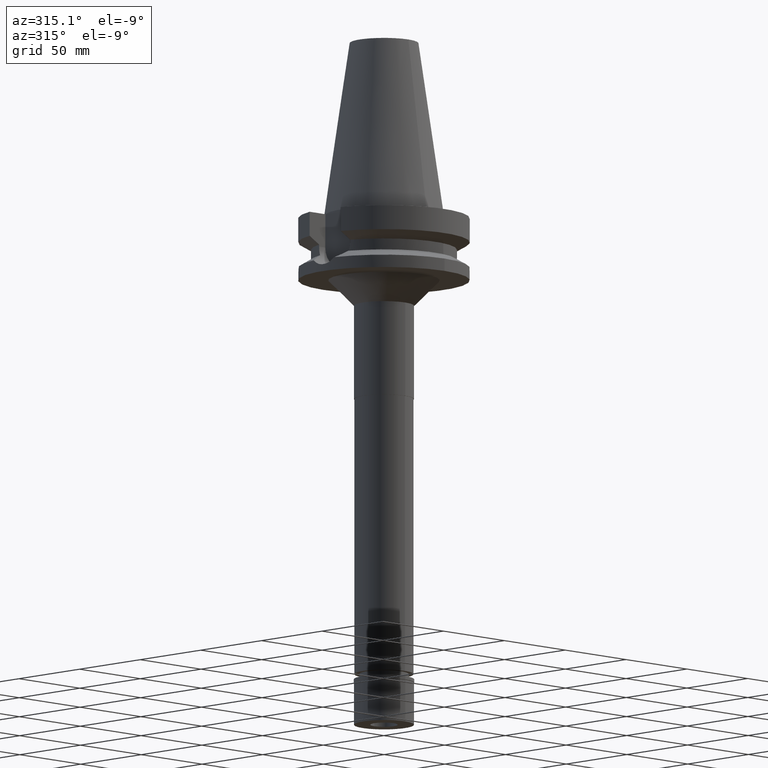
[diagram: clean part render]
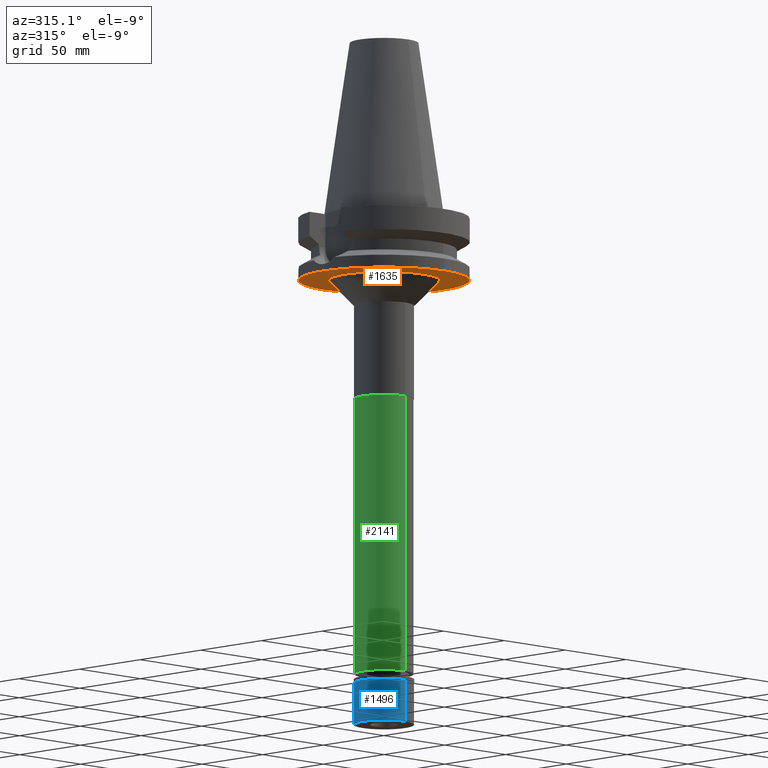
[diagram: same view with three faces highlighted in distinct colors, each labeled with its STEP entity id]
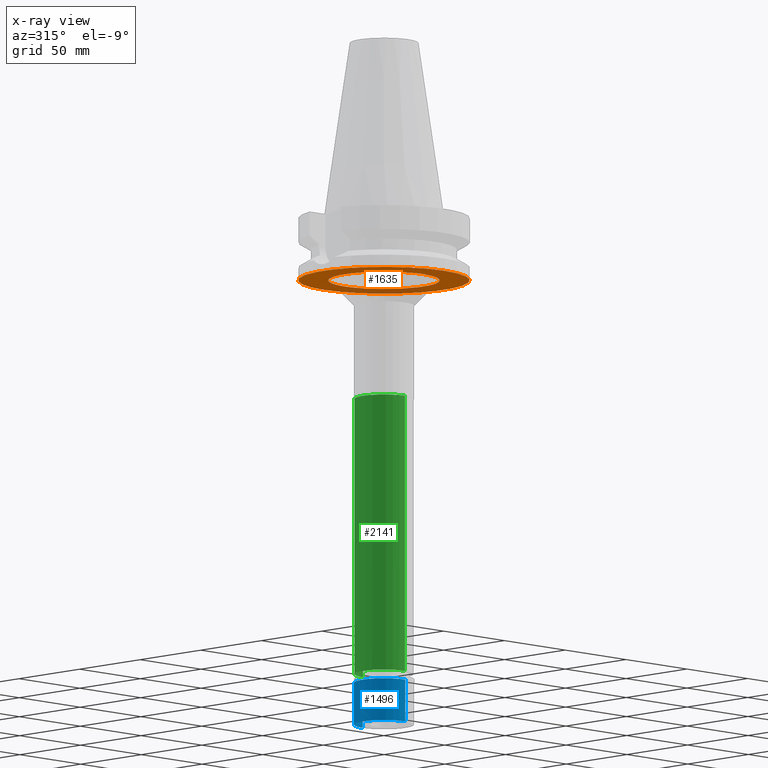
[diagram: x-ray of the same camera — body ghosted, the three highlighted faces saturated]
A machine part, auxiliary view with three faces highlighted in distinct colors.
The next image is the same camera in x-ray (body ghosted, the three faces saturated) — at least one of them is partly hidden behind the body in this view.
Their STEP definitions:

[orange] entity #1635 — the highlighted planar face has unit normal (0, 0, -1).
#7 = CARTESIAN_POINT ( 'NONE',  ( 0.0000000000000000000, -50.00000000000000000, -38.00000000000000000 ) ) ;
#75 = EDGE_CURVE ( 'NONE', #1028, #2065, #749, .T. ) ;
#76 = CARTESIAN_POINT ( 'NONE',  ( 0.0000000000000000000, 32.50000000000000000, -38.00000000000000000 ) ) ;
#116 = AXIS2_PLACEMENT_3D ( 'NONE', #730, #2694, #220 ) ;
#119 = PLANE ( 'NONE',  #382 ) ;
#137 = DIRECTION ( 'NONE',  ( 0.0000000000000000000, 1.000000000000000000, 0.0000000000000000000 ) ) ;
#200 = VERTEX_POINT ( 'NONE', #3052 ) ;
#220 = DIRECTION ( 'NONE',  ( 0.0000000000000000000, -1.000000000000000000, 0.0000000000000000000 ) ) ;
#253 = DIRECTION ( 'NONE',  ( 0.0000000000000000000, 0.0000000000000000000, 1.000000000000000000 ) ) ;
#285 = DIRECTION ( 'NONE',  ( 0.0000000000000000000, 1.000000000000000000, 0.0000000000000000000 ) ) ;
#354 = DIRECTION ( 'NONE',  ( 0.0000000000000000000, 0.0000000000000000000, -1.000000000000000000 ) ) ;
#382 = AXIS2_PLACEMENT_3D ( 'NONE', #945, #2881, #1620 ) ;
#393 = FACE_OUTER_BOUND ( 'NONE', #880, .T. ) ;
#416 = CARTESIAN_POINT ( 'NONE',  ( 0.0000000000000000000, 0.0000000000000000000, -38.00000000000000000 ) ) ;
#486 = CIRCLE ( 'NONE', #541, 32.50000000000000000 ) ;
#488 = ORIENTED_EDGE ( 'NONE', *, *, #732, .F. ) ;
#541 = AXIS2_PLACEMENT_3D ( 'NONE', #416, #964, #1965 ) ;
#641 = CARTESIAN_POINT ( 'NONE',  ( 0.0000000000000000000, 0.0000000000000000000, -38.00000000000000000 ) ) ;
#693 = AXIS2_PLACEMENT_3D ( 'NONE', #2505, #253, #285 ) ;
#730 = CARTESIAN_POINT ( 'NONE',  ( 0.0000000000000000000, 2.710633225232999536E-14, -38.00000000000000000 ) ) ;
#732 = EDGE_CURVE ( 'NONE', #1488, #200, #1017, .T. ) ;
#749 = CIRCLE ( 'NONE', #116, 50.00000000000000000 ) ;
#826 = ORIENTED_EDGE ( 'NONE', *, *, #75, .F. ) ;
#880 = EDGE_LOOP ( 'NONE', ( #2230, #826 ) ) ;
#945 = CARTESIAN_POINT ( 'NONE',  ( 0.0000000000000000000, 0.0000000000000000000, -38.00000000000000000 ) ) ;
#964 = DIRECTION ( 'NONE',  ( 0.0000000000000000000, 0.0000000000000000000, -1.000000000000000000 ) ) ;
#1017 = CIRCLE ( 'NONE', #1645, 32.50000000000000000 ) ;
#1028 = VERTEX_POINT ( 'NONE', #7 ) ;
#1199 = EDGE_CURVE ( 'NONE', #200, #1488, #486, .T. ) ;
#1488 = VERTEX_POINT ( 'NONE', #76 ) ;
#1620 = DIRECTION ( 'NONE',  ( 0.0000000000000000000, -1.000000000000000000, 0.0000000000000000000 ) ) ;
#1635 = ADVANCED_FACE ( 'NONE', ( #393, #1906 ), #119, .T. ) ;
#1645 = AXIS2_PLACEMENT_3D ( 'NONE', #641, #354, #137 ) ;
#1906 = FACE_BOUND ( 'NONE', #2985, .T. ) ;
#1942 = ORIENTED_EDGE ( 'NONE', *, *, #1199, .F. ) ;
#1965 = DIRECTION ( 'NONE',  ( 0.0000000000000000000, -1.000000000000000000, 0.0000000000000000000 ) ) ;
#2065 = VERTEX_POINT ( 'NONE', #2680 ) ;
#2230 = ORIENTED_EDGE ( 'NONE', *, *, #2642, .F. ) ;
#2505 = CARTESIAN_POINT ( 'NONE',  ( 0.0000000000000000000, 2.710633225232999536E-14, -38.00000000000000000 ) ) ;
#2642 = EDGE_CURVE ( 'NONE', #2065, #1028, #3043, .T. ) ;
#2680 = CARTESIAN_POINT ( 'NONE',  ( 0.0000000000000000000, 50.00000000000000000, -38.00000000000000000 ) ) ;
#2694 = DIRECTION ( 'NONE',  ( 0.0000000000000000000, 0.0000000000000000000, 1.000000000000000000 ) ) ;
#2881 = DIRECTION ( 'NONE',  ( 0.0000000000000000000, 0.0000000000000000000, -1.000000000000000000 ) ) ;
#2985 = EDGE_LOOP ( 'NONE', ( #488, #1942 ) ) ;
#3043 = CIRCLE ( 'NONE', #693, 50.00000000000000000 ) ;
#3052 = CARTESIAN_POINT ( 'NONE',  ( 0.0000000000000000000, -32.50000000000000000, -38.00000000000000000 ) ) ;

[blue] entity #1496 — the highlighted cylindrical surface (edge-blend (fillet) strip) has radius 17.5 mm, axis along (0, 0, -1).
#64 = CIRCLE ( 'NONE', #894, 17.50000000000000000 ) ;
#110 = CARTESIAN_POINT ( 'NONE',  ( 0.0000000000000000000, 0.0000000000000000000, -2.100000000000000089 ) ) ;
#182 = CIRCLE ( 'NONE', #2011, 17.50000000000000000 ) ;
#218 = CARTESIAN_POINT ( 'NONE',  ( 0.0000000000000000000, 0.0000000000000000000, -26.70000000000000284 ) ) ;
#238 = LINE ( 'NONE', #2253, #2103 ) ;
#501 = DIRECTION ( 'NONE',  ( 0.0000000000000000000, -1.000000000000000000, 0.0000000000000000000 ) ) ;
#894 = AXIS2_PLACEMENT_3D ( 'NONE', #218, #1991, #1977 ) ;
#911 = ORIENTED_EDGE ( 'NONE', *, *, #2691, .T. ) ;
#1001 = CYLINDRICAL_SURFACE ( 'NONE', #1710, 17.50000000000000000 ) ;
#1086 = EDGE_CURVE ( 'NONE', #2870, #2247, #182, .T. ) ;
#1157 = CARTESIAN_POINT ( 'NONE',  ( 0.0000000000000000000, -17.50000000000000000, -2.100000000000000089 ) ) ;
#1452 = VERTEX_POINT ( 'NONE', #2298 ) ;
#1480 = DIRECTION ( 'NONE',  ( 0.0000000000000000000, 0.0000000000000000000, -1.000000000000000000 ) ) ;
#1496 = ADVANCED_FACE ( 'NONE', ( #1768 ), #1001, .T. ) ;
#1710 = AXIS2_PLACEMENT_3D ( 'NONE', #2993, #1972, #501 ) ;
#1758 = EDGE_CURVE ( 'NONE', #1452, #2123, #64, .T. ) ;
#1768 = FACE_OUTER_BOUND ( 'NONE', #3225, .T. ) ;
#1823 = ORIENTED_EDGE ( 'NONE', *, *, #3075, .F. ) ;
#1837 = ORIENTED_EDGE ( 'NONE', *, *, #1758, .T. ) ;
#1931 = DIRECTION ( 'NONE',  ( 0.0000000000000000000, -1.000000000000000000, 0.0000000000000000000 ) ) ;
#1972 = DIRECTION ( 'NONE',  ( 0.0000000000000000000, 0.0000000000000000000, -1.000000000000000000 ) ) ;
#1977 = DIRECTION ( 'NONE',  ( 0.0000000000000000000, 1.000000000000000000, 0.0000000000000000000 ) ) ;
#1991 = DIRECTION ( 'NONE',  ( 0.0000000000000000000, 0.0000000000000000000, 1.000000000000000000 ) ) ;
#2011 = AXIS2_PLACEMENT_3D ( 'NONE', #110, #2166, #1931 ) ;
#2103 = VECTOR ( 'NONE', #1480, 1000.000000000000000 ) ;
#2123 = VERTEX_POINT ( 'NONE', #2258 ) ;
#2166 = DIRECTION ( 'NONE',  ( 0.0000000000000000000, 0.0000000000000000000, -1.000000000000000000 ) ) ;
#2182 = CARTESIAN_POINT ( 'NONE',  ( 0.0000000000000000000, -17.50000000000000000, -2.100000000000000089 ) ) ;
#2247 = VERTEX_POINT ( 'NONE', #2860 ) ;
#2253 = CARTESIAN_POINT ( 'NONE',  ( 0.0000000000000000000, 17.50000000000000000, -2.100000000000000089 ) ) ;
#2258 = CARTESIAN_POINT ( 'NONE',  ( 0.0000000000000000000, -17.50000000000000000, -26.70000000000000284 ) ) ;
#2298 = CARTESIAN_POINT ( 'NONE',  ( 0.0000000000000000000, 17.50000000000000000, -26.70000000000000284 ) ) ;
#2304 = ORIENTED_EDGE ( 'NONE', *, *, #1086, .T. ) ;
#2489 = VECTOR ( 'NONE', #2924, 1000.000000000000000 ) ;
#2691 = EDGE_CURVE ( 'NONE', #2247, #1452, #238, .T. ) ;
#2860 = CARTESIAN_POINT ( 'NONE',  ( 0.0000000000000000000, 17.50000000000000000, -2.100000000000000089 ) ) ;
#2870 = VERTEX_POINT ( 'NONE', #2182 ) ;
#2905 = LINE ( 'NONE', #1157, #2489 ) ;
#2924 = DIRECTION ( 'NONE',  ( 0.0000000000000000000, 0.0000000000000000000, -1.000000000000000000 ) ) ;
#2993 = CARTESIAN_POINT ( 'NONE',  ( 0.0000000000000000000, 0.0000000000000000000, 0.0000000000000000000 ) ) ;
#3075 = EDGE_CURVE ( 'NONE', #2870, #2123, #2905, .T. ) ;
#3225 = EDGE_LOOP ( 'NONE', ( #1837, #1823, #2304, #911 ) ) ;

[green] entity #2141 — the highlighted cylindrical surface (edge-blend (fillet) strip) has radius 17.25 mm, axis along (0, 0, -1).
#24 = CARTESIAN_POINT ( 'NONE',  ( 0.0000000000000000000, 2.710633225232999536E-14, 121.3400000000000034 ) ) ;
#78 = CARTESIAN_POINT ( 'NONE',  ( 0.0000000000000000000, -17.25000000000000000, -108.0000000000000000 ) ) ;
#202 = LINE ( 'NONE', #1459, #433 ) ;
#223 = CIRCLE ( 'NONE', #2677, 17.25000000000000000 ) ;
#257 = FACE_OUTER_BOUND ( 'NONE', #1649, .T. ) ;
#290 = DIRECTION ( 'NONE',  ( 0.0000000000000000000, 0.0000000000000000000, -1.000000000000000000 ) ) ;
#308 = ORIENTED_EDGE ( 'NONE', *, *, #3108, .T. ) ;
#351 = VERTEX_POINT ( 'NONE', #78 ) ;
#433 = VECTOR ( 'NONE', #3188, 1000.000000000000000 ) ;
#465 = CARTESIAN_POINT ( 'NONE',  ( 0.0000000000000000000, 17.25000000000000000, -108.0000000000000000 ) ) ;
#708 = DIRECTION ( 'NONE',  ( 0.0000000000000000000, -1.000000000000000000, 0.0000000000000000000 ) ) ;
#759 = VERTEX_POINT ( 'NONE', #1701 ) ;
#919 = VECTOR ( 'NONE', #959, 1000.000000000000000 ) ;
#959 = DIRECTION ( 'NONE',  ( 0.0000000000000000000, 0.0000000000000000000, -1.000000000000000000 ) ) ;
#1120 = ORIENTED_EDGE ( 'NONE', *, *, #2667, .T. ) ;
#1193 = CARTESIAN_POINT ( 'NONE',  ( 0.0000000000000000000, 2.710633225232999536E-14, -108.0000000000000000 ) ) ;
#1208 = ORIENTED_EDGE ( 'NONE', *, *, #2954, .F. ) ;
#1280 = DIRECTION ( 'NONE',  ( 0.0000000000000000000, 1.000000000000000000, 0.0000000000000000000 ) ) ;
#1306 = VERTEX_POINT ( 'NONE', #1583 ) ;
#1459 = CARTESIAN_POINT ( 'NONE',  ( 0.0000000000000000000, -17.25000000000000000, -108.0000000000000000 ) ) ;
#1583 = CARTESIAN_POINT ( 'NONE',  ( 0.0000000000000000000, -17.25000000000000000, -270.1999999999999886 ) ) ;
#1649 = EDGE_LOOP ( 'NONE', ( #1120, #1208, #308, #2996 ) ) ;
#1701 = CARTESIAN_POINT ( 'NONE',  ( 0.0000000000000000000, 17.25000000000000000, -270.1999999999999886 ) ) ;
#1762 = AXIS2_PLACEMENT_3D ( 'NONE', #1193, #2959, #708 ) ;
#1803 = CYLINDRICAL_SURFACE ( 'NONE', #2428, 17.25000000000000000 ) ;
#2032 = DIRECTION ( 'NONE',  ( 0.0000000000000000000, -1.000000000000000000, 0.0000000000000000000 ) ) ;
#2141 = ADVANCED_FACE ( 'NONE', ( #257 ), #1803, .T. ) ;
#2379 = CIRCLE ( 'NONE', #1762, 17.25000000000000000 ) ;
#2428 = AXIS2_PLACEMENT_3D ( 'NONE', #24, #290, #2032 ) ;
#2499 = CARTESIAN_POINT ( 'NONE',  ( 0.0000000000000000000, 17.25000000000000000, -108.0000000000000000 ) ) ;
#2667 = EDGE_CURVE ( 'NONE', #759, #1306, #223, .T. ) ;
#2670 = VERTEX_POINT ( 'NONE', #465 ) ;
#2677 = AXIS2_PLACEMENT_3D ( 'NONE', #2976, #2726, #1280 ) ;
#2726 = DIRECTION ( 'NONE',  ( 0.0000000000000000000, 0.0000000000000000000, 1.000000000000000000 ) ) ;
#2738 = LINE ( 'NONE', #2499, #919 ) ;
#2954 = EDGE_CURVE ( 'NONE', #351, #1306, #202, .T. ) ;
#2959 = DIRECTION ( 'NONE',  ( 0.0000000000000000000, 0.0000000000000000000, -1.000000000000000000 ) ) ;
#2976 = CARTESIAN_POINT ( 'NONE',  ( 0.0000000000000000000, 2.710633225232999536E-14, -270.1999999999999886 ) ) ;
#2996 = ORIENTED_EDGE ( 'NONE', *, *, #3201, .T. ) ;
#3108 = EDGE_CURVE ( 'NONE', #351, #2670, #2379, .T. ) ;
#3188 = DIRECTION ( 'NONE',  ( 0.0000000000000000000, 0.0000000000000000000, -1.000000000000000000 ) ) ;
#3201 = EDGE_CURVE ( 'NONE', #2670, #759, #2738, .T. ) ;